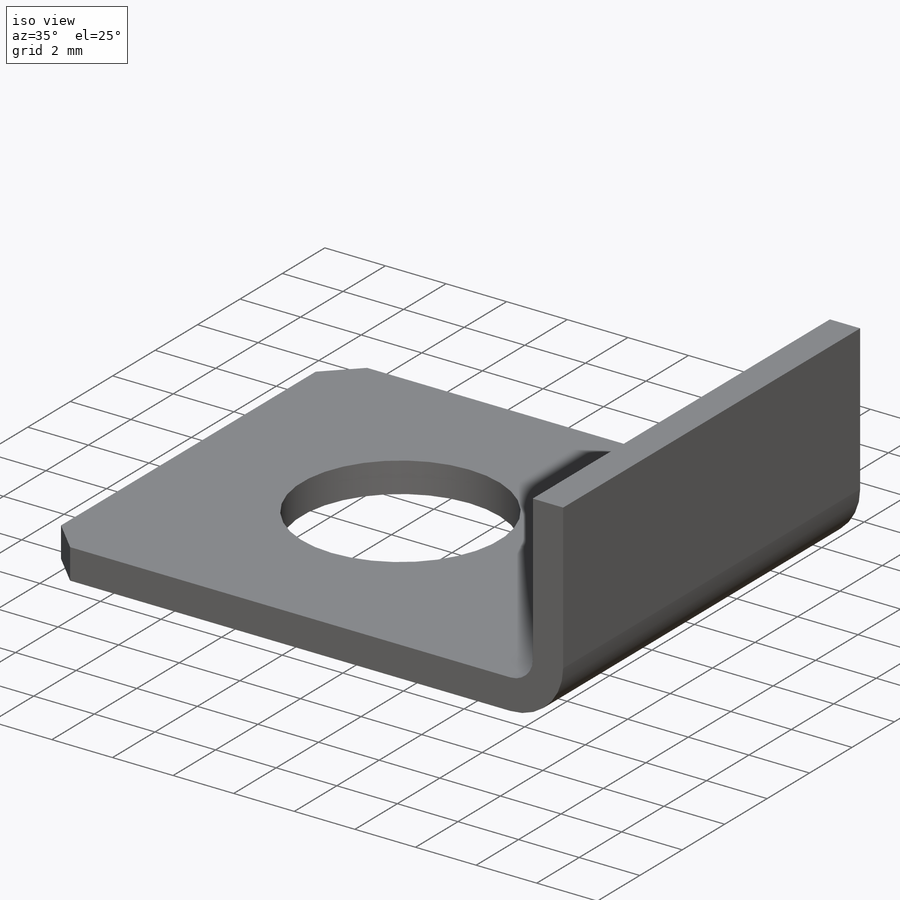
[diagram: iso view]
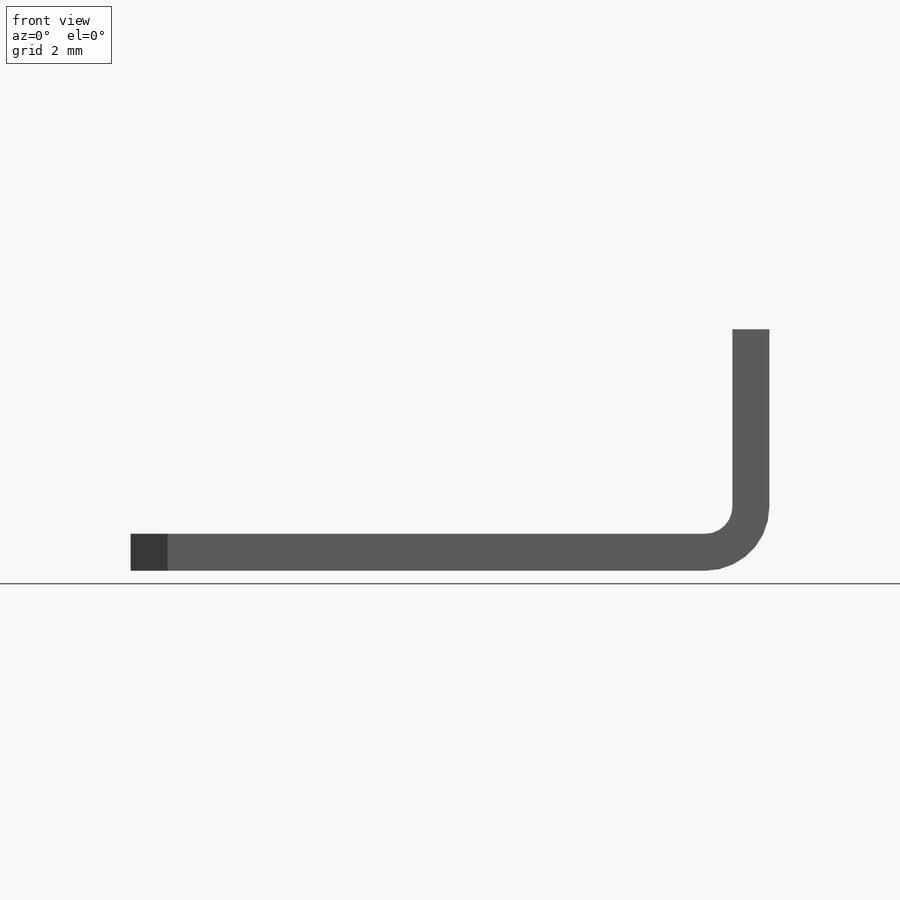
[diagram: front view]
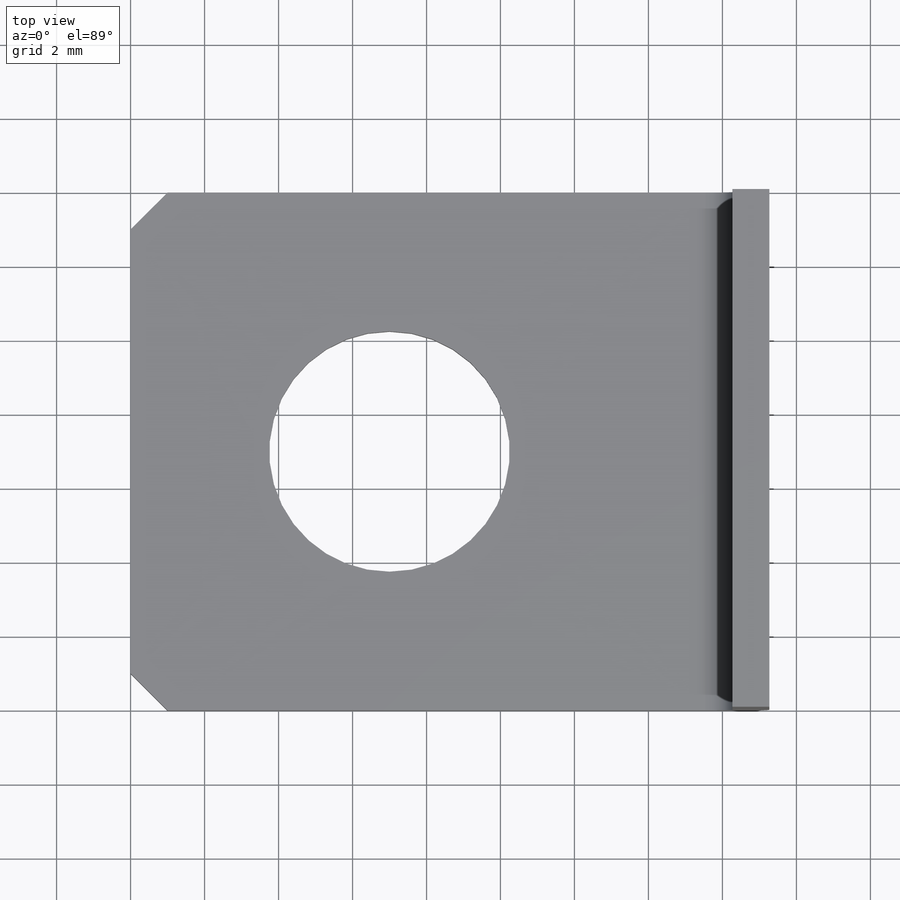
[diagram: top view]
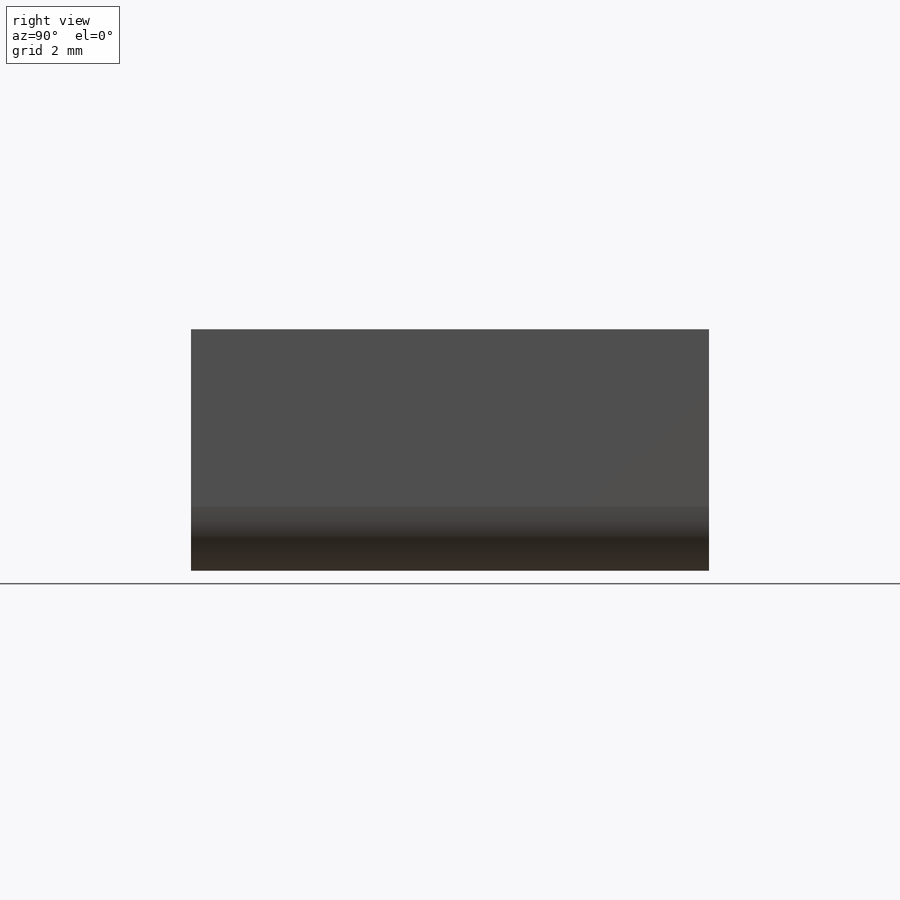
[diagram: right view]
SOLIDWORKS PART (.sldprt)
format: sldprt  version: not decoded by parser v0  size: 191,488 bytes
history: native  units: mm
features: sketch x6, sheet_metal_op x2, material x1, hole x1 + 1 further entry (+16 scaffold rows collapsed; 2 parser-record rows omitted)
feature tree (29):
  scaffold x16  (default folders/planes/origin — collapsed)
  material  "Material <not specified>"
  sketch  "Sketch1"  dims[c1.D1=14.0mm c2.D1=22.27mm c2.D4=1.0mm c2.D5=1.0mm]
  sheet_metal_op  "Sheet-Metal1"  Thickness=1mm
  sheet_metal_op  "Base-Flange1"
  sketch  "Sketch3"
  parser-record x2  (decoder bookkeeping rows leaked as tree rows — omitted from the tree; the rows remain in map.json)
  sketch  "Sketch4"  dims[D1=7.0mm]
  hole  "Ø6.5 (6.5) Diameter Hole1"  Diameter=6.5mm Depth=1mm
  sketch  "3DSketch1"
  sketch  "Sketch6"  dims[hole-wizard template sketch: 59 standard entries collapsed; hole parameters kept: c18.Thru Hole Dia.=6.5mm c18.Thru Hole Depth=1.0mm]
  "Flat-Pattern1"
  sketch  "Bend-Lines1"
decode coverage: 5 of 9 modeling features carry decoded parameters; 1 rows unclassified (native names shown)
note: ~ marks probable driven/reference dimensions
note: suppression state not decoded; provenance and decode notes live in map.json
